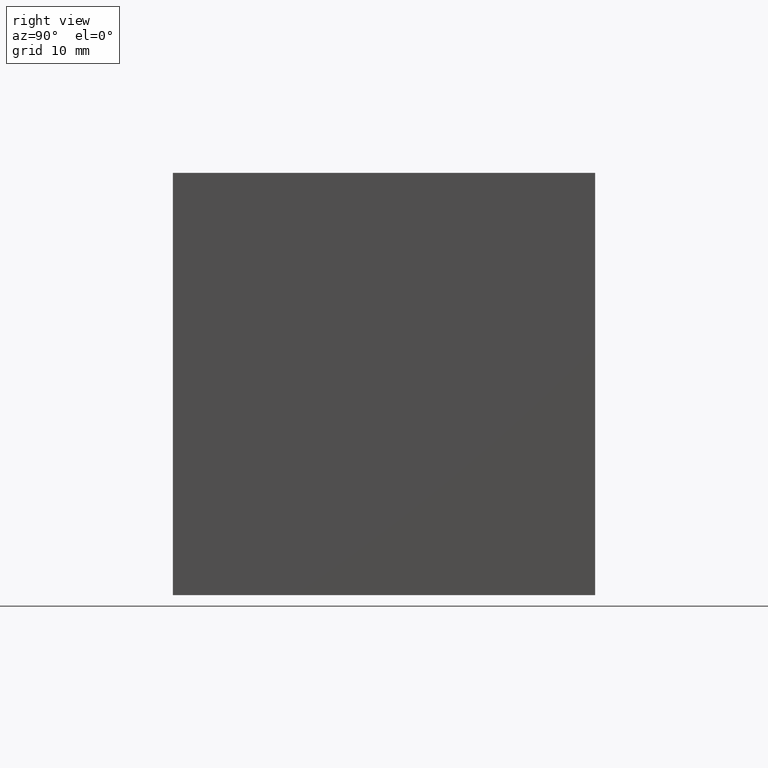
[diagram: clean part render]
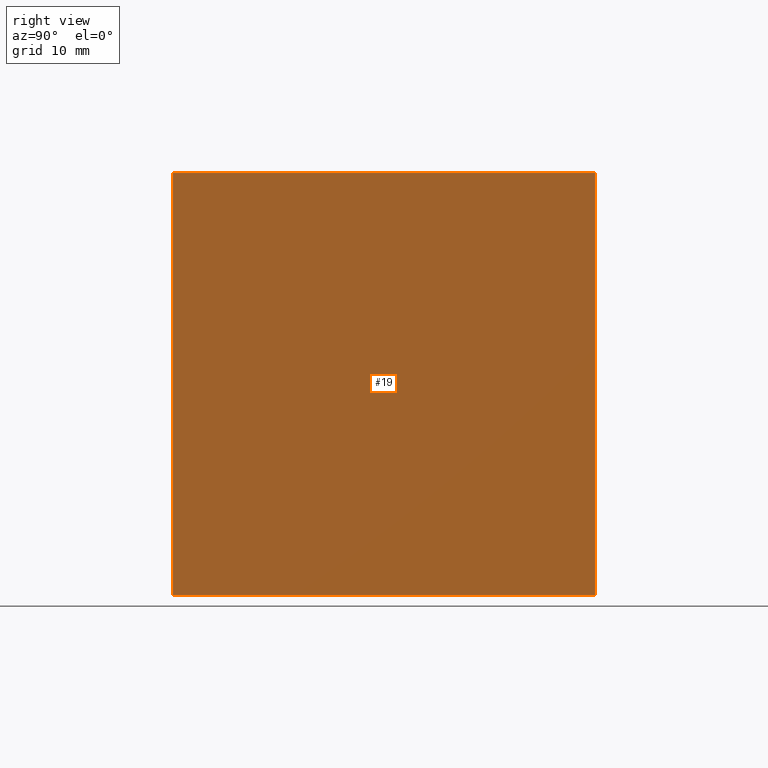
[diagram: same view with one face highlighted and labeled with its STEP entity id]
A machine part, right view. The second image highlights one B-rep face of the part: STEP entity #19.
In plain terms, the highlighted planar face has unit normal (-1, 0, 0).
Its self-contained STEP definition (entity closure, byte-faithful):
#1 = VECTOR ( 'NONE', #31, 1000.000000000000000 ) ;
#7 = EDGE_CURVE ( 'NONE', #181, #99, #288, .T. ) ;
#13 = CARTESIAN_POINT ( 'NONE',  ( 0.0000000000000000000, 50.00000000000000000, -50.00000000000000000 ) ) ;
#15 = CARTESIAN_POINT ( 'NONE',  ( 0.0000000000000000000, 50.00000000000000000, 0.0000000000000000000 ) ) ;
#19 = ADVANCED_FACE ( 'NONE', ( #294 ), #269, .F. ) ;
#31 = DIRECTION ( 'NONE',  ( -0.0000000000000000000, -1.000000000000000000, -0.0000000000000000000 ) ) ;
#37 = ORIENTED_EDGE ( 'NONE', *, *, #7, .T. ) ;
#46 = CARTESIAN_POINT ( 'NONE',  ( 0.0000000000000000000, 0.0000000000000000000, -50.00000000000000000 ) ) ;
#47 = LINE ( 'NONE', #85, #75 ) ;
#57 = EDGE_LOOP ( 'NONE', ( #37, #60, #103, #162 ) ) ;
#58 = DIRECTION ( 'NONE',  ( 0.0000000000000000000, 0.0000000000000000000, 1.000000000000000000 ) ) ;
#60 = ORIENTED_EDGE ( 'NONE', *, *, #168, .F. ) ;
#64 = DIRECTION ( 'NONE',  ( -0.0000000000000000000, -1.000000000000000000, -0.0000000000000000000 ) ) ;
#75 = VECTOR ( 'NONE', #64, 1000.000000000000000 ) ;
#85 = CARTESIAN_POINT ( 'NONE',  ( 0.0000000000000000000, 50.00000000000000000, -50.00000000000000000 ) ) ;
#89 = CARTESIAN_POINT ( 'NONE',  ( 0.0000000000000000000, 0.0000000000000000000, 0.0000000000000000000 ) ) ;
#91 = DIRECTION ( 'NONE',  ( 0.0000000000000000000, 0.0000000000000000000, -1.000000000000000000 ) ) ;
#94 = EDGE_CURVE ( 'NONE', #256, #252, #285, .T. ) ;
#99 = VERTEX_POINT ( 'NONE', #46 ) ;
#100 = CARTESIAN_POINT ( 'NONE',  ( 0.0000000000000000000, 50.00000000000000000, 0.0000000000000000000 ) ) ;
#103 = ORIENTED_EDGE ( 'NONE', *, *, #94, .F. ) ;
#123 = DIRECTION ( 'NONE',  ( 0.0000000000000000000, 0.0000000000000000000, -1.000000000000000000 ) ) ;
#137 = LINE ( 'NONE', #169, #1 ) ;
#159 = VECTOR ( 'NONE', #91, 1000.000000000000000 ) ;
#162 = ORIENTED_EDGE ( 'NONE', *, *, #260, .T. ) ;
#168 = EDGE_CURVE ( 'NONE', #252, #99, #47, .T. ) ;
#169 = CARTESIAN_POINT ( 'NONE',  ( 0.0000000000000000000, 50.00000000000000000, 0.0000000000000000000 ) ) ;
#181 = VERTEX_POINT ( 'NONE', #89 ) ;
#224 = VECTOR ( 'NONE', #123, 1000.000000000000000 ) ;
#226 = DIRECTION ( 'NONE',  ( -1.000000000000000000, 0.0000000000000000000, 0.0000000000000000000 ) ) ;
#240 = CARTESIAN_POINT ( 'NONE',  ( 0.0000000000000000000, 50.00000000000000000, 0.0000000000000000000 ) ) ;
#252 = VERTEX_POINT ( 'NONE', #13 ) ;
#256 = VERTEX_POINT ( 'NONE', #100 ) ;
#260 = EDGE_CURVE ( 'NONE', #256, #181, #137, .T. ) ;
#269 = PLANE ( 'NONE',  #298 ) ;
#273 = CARTESIAN_POINT ( 'NONE',  ( 0.0000000000000000000, 0.0000000000000000000, 0.0000000000000000000 ) ) ;
#285 = LINE ( 'NONE', #240, #159 ) ;
#288 = LINE ( 'NONE', #273, #224 ) ;
#294 = FACE_OUTER_BOUND ( 'NONE', #57, .T. ) ;
#298 = AXIS2_PLACEMENT_3D ( 'NONE', #15, #226, #58 ) ;